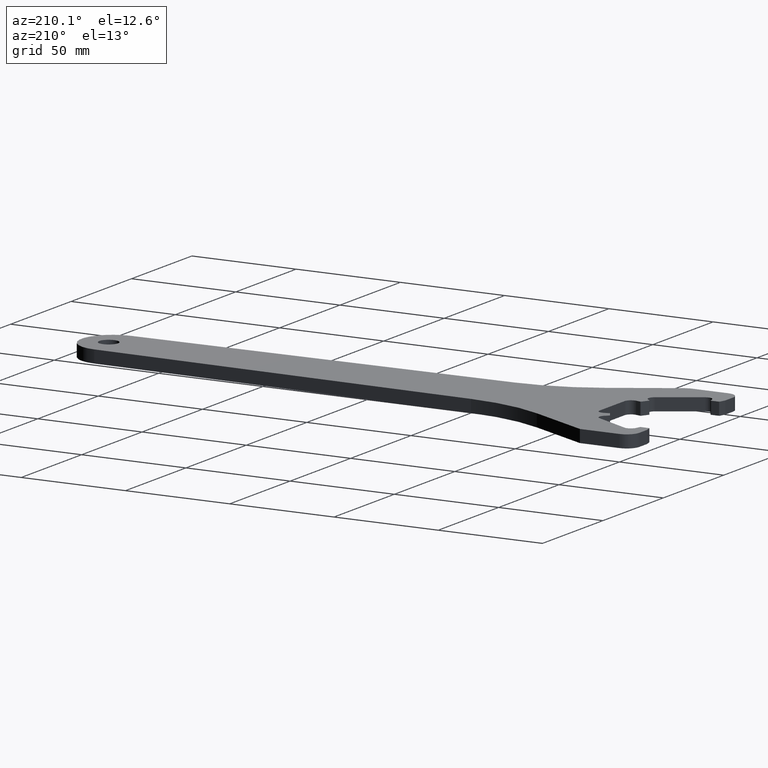
[diagram: clean part render]
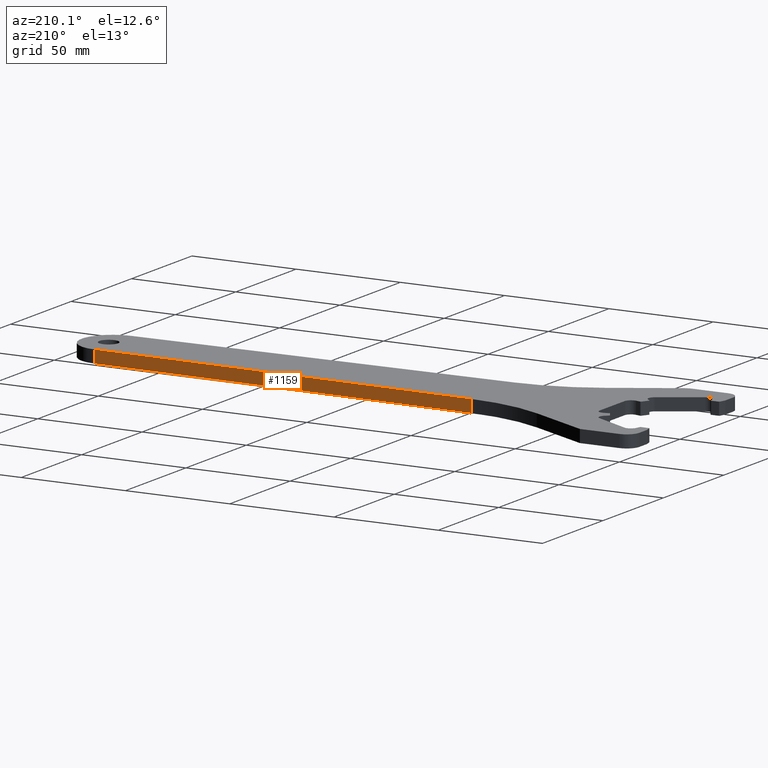
[diagram: same view with one face highlighted and labeled with its STEP entity id]
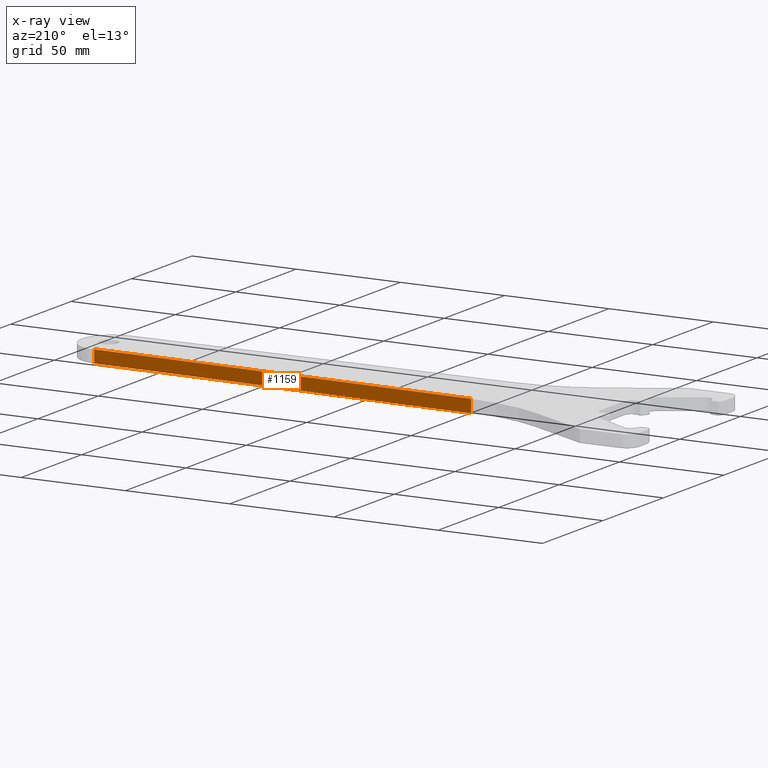
[diagram: x-ray of the same camera — body ghosted, the highlighted face saturated]
A machine part, auxiliary view. The second image highlights one B-rep face of the part: STEP entity #1159.
The next image is the same camera in x-ray: the body ghosted, the highlighted face saturated — about 0% of this face is hidden behind the body in this view.
In plain terms, the highlighted planar face has unit normal (0.0167, 0.9999, -0).
Its self-contained STEP definition (entity closure, byte-faithful):
#5 = DIRECTION ( 'NONE',  ( -0.0000000000000000000, -0.0000000000000000000, -1.000000000000000000 ) ) ;
#20 = DIRECTION ( 'NONE',  ( 0.0000000000000000000, 0.0000000000000000000, 1.000000000000000000 ) ) ;
#24 = EDGE_CURVE ( 'NONE', #120, #1505, #30, .T. ) ;
#29 = EDGE_LOOP ( 'NONE', ( #248, #365, #1620, #127 ) ) ;
#30 = LINE ( 'NONE', #938, #642 ) ;
#71 = CARTESIAN_POINT ( 'NONE',  ( 272.2333643269999500, 14.99791652200000100, 0.0000000000000000000 ) ) ;
#97 = DIRECTION ( 'NONE',  ( 0.01666666666406415400, 0.9998611014647530400, -0.0000000000000000000 ) ) ;
#120 = VERTEX_POINT ( 'NONE', #475 ) ;
#127 = ORIENTED_EDGE ( 'NONE', *, *, #24, .T. ) ;
#166 = VECTOR ( 'NONE', #1259, 1000.000000000000200 ) ;
#248 = ORIENTED_EDGE ( 'NONE', *, *, #379, .F. ) ;
#250 = LINE ( 'NONE', #71, #1254 ) ;
#330 = EDGE_CURVE ( 'NONE', #1386, #120, #250, .T. ) ;
#365 = ORIENTED_EDGE ( 'NONE', *, *, #809, .T. ) ;
#379 = EDGE_CURVE ( 'NONE', #989, #1505, #494, .T. ) ;
#475 = CARTESIAN_POINT ( 'NONE',  ( 89.75082507693063900, 18.03971467700116800, -2.168404344971008900E-016 ) ) ;
#494 = LINE ( 'NONE', #1121, #166 ) ;
#588 = LINE ( 'NONE', #1514, #1197 ) ;
#642 = VECTOR ( 'NONE', #20, 1000.000000000000000 ) ;
#646 = FACE_OUTER_BOUND ( 'NONE', #29, .T. ) ;
#809 = EDGE_CURVE ( 'NONE', #989, #1386, #588, .T. ) ;
#815 = DIRECTION ( 'NONE',  ( -0.9998611014647529300, 0.01666666666406415400, 0.0000000000000000000 ) ) ;
#841 = CARTESIAN_POINT ( 'NONE',  ( 272.2333643269999500, 14.99791652200000100, 0.0000000000000000000 ) ) ;
#938 = CARTESIAN_POINT ( 'NONE',  ( 89.75082507700001600, 18.03971467699999900, 3.000000000000000000 ) ) ;
#974 = DIRECTION ( 'NONE',  ( -0.9998611014647530400, 0.01666666666406415400, 0.0000000000000000000 ) ) ;
#989 = VERTEX_POINT ( 'NONE', #1310 ) ;
#1121 = CARTESIAN_POINT ( 'NONE',  ( 272.2333644370600000, 14.99791652569996900, 6.000000000000000000 ) ) ;
#1159 = ADVANCED_FACE ( 'NONE', ( #646 ), #1608, .T. ) ;
#1197 = VECTOR ( 'NONE', #5, 1000.000000000000000 ) ;
#1254 = VECTOR ( 'NONE', #815, 1000.000000000000100 ) ;
#1259 = DIRECTION ( 'NONE',  ( -0.9998611014674470000, 0.01666666650243796300, 0.0000000000000000000 ) ) ;
#1305 = CARTESIAN_POINT ( 'NONE',  ( 89.75082508319594900, 18.03971466491088200, 6.000000000000000000 ) ) ;
#1310 = CARTESIAN_POINT ( 'NONE',  ( 272.2333643258145900, 14.99791652478703700, 6.000000000000000000 ) ) ;
#1353 = CARTESIAN_POINT ( 'NONE',  ( 272.2333643269806200, 14.99791652200032000, -2.168404344971008900E-016 ) ) ;
#1372 = AXIS2_PLACEMENT_3D ( 'NONE', #841, #97, #974 ) ;
#1386 = VERTEX_POINT ( 'NONE', #1353 ) ;
#1505 = VERTEX_POINT ( 'NONE', #1305 ) ;
#1514 = CARTESIAN_POINT ( 'NONE',  ( 272.2333643269999500, 14.99791652200000100, 3.000000000000000000 ) ) ;
#1608 = PLANE ( 'NONE',  #1372 ) ;
#1620 = ORIENTED_EDGE ( 'NONE', *, *, #330, .T. ) ;